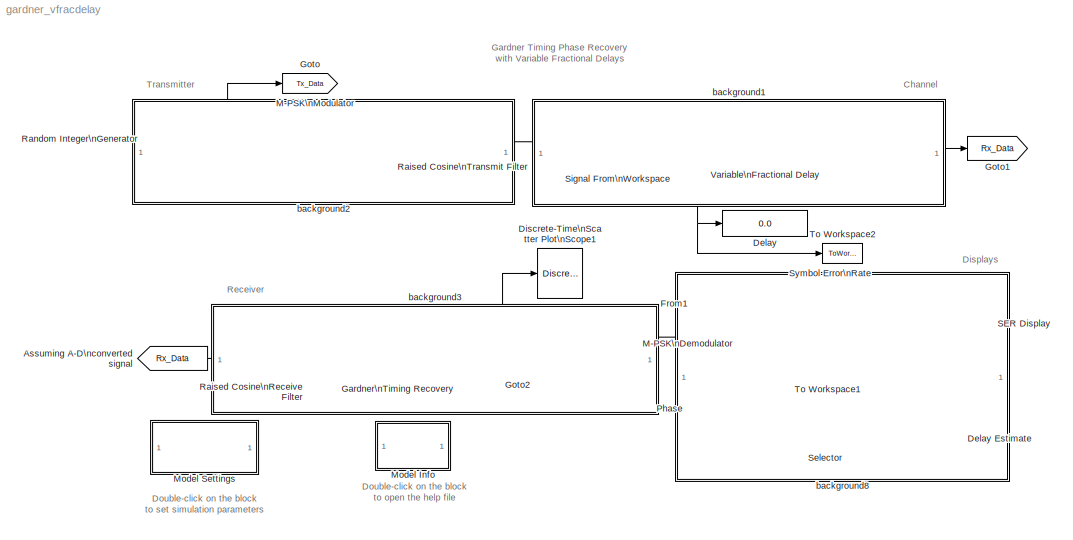
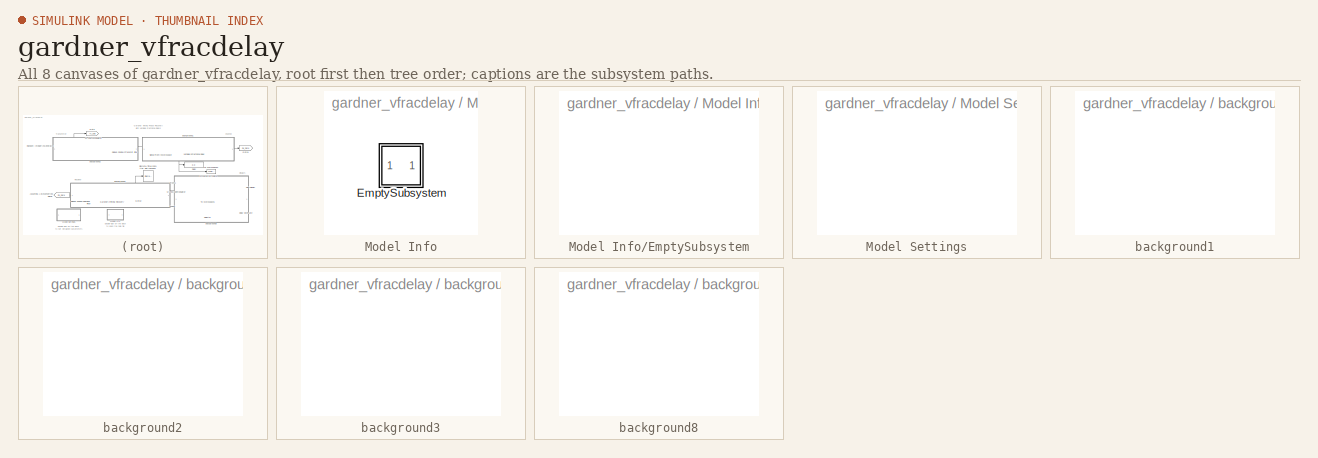
[diagram: thumbnail index - all 8 canvases of the model, root first then tree order]
MODEL gardner_vfracdelay
KIND model
CONFIG PreLoadFcn = L = 16; M = 8; tsym = 0.01; numSymb = 200; snrdB = 40;\nR = 10; rollOff = 0.75; filtDelay = 3; g = 0.07;
CONFIG StartFcn = if (exist('h') & ishandle(h))\n   close(h);\nend
CONFIG StopFcn = a = squeeze(delay).'; b = a(ones(numSymb,1), :); b = b(:);\nh = figure; set(gcf,'position', [452 104 473 342]);\nplot(b, 'b'); hold on; pause(1);plot(tau_fb,'r'); grid on; xlabel('Symbols');\nylabel('in Samples Per Symbol'); title('Delay Estimates');\nlegend('Actual','Estimated');
BLOCK [Reference]    REF=commchan2/AWGN\nChannel
  EbNodB = 10
  EsNodB = snrdB + 10*log10(L)
  Ports = [1, 1]
  Ps = 1
  SNRdB = snrdB
  ShowPortLabels = on
  SourceBlock = commchan2/AWGN\nChannel
  SourceType = AWGN Channel
  Tsym = tsym
  bitsPerSym = 1
  noiseMode = Signal to noise ratio  (SNR)
  seed = 61
  variance = 0.0
BLOCK [From] Assuming A-D\nconverted signal
  CloseFcn = tagdialog Close
  DialogController = Simulink.DDGSource
  GotoTag = Rx_Data
BLOCK [Display] Delay
  Decimation = 1
  Ports = [1]
BLOCK [Display] Delay Estimate
  Decimation = 1
  Ports = [1]
BLOCK [Reference] Discrete-Time\nScatter Plot\nScope1  REF=commsink2/Discrete-Time\nScatter Plot\nScope
  AxisGrid = on
  FigPos = [67 96 375 375]
  FrameNumber = off
  LineColors = b
  LineMarkers = *
  Ports = [1]
  ShowPortLabels = on
  SourceBlock = commsink2/Discrete-Time\nScatter Plot\nScope
  SourceType = Discrete-Time Scatter Plot Scope
  Tag = ScatterPlot
  block_type_ = scatter
  fading = off
  figTitle = Rx Symbols
  inphaseLabel = In-phase Amplitude
  numLinesMax = 8
  numNewFrames = 10
  numTraces = 40
  offsetEye = 0
  openScopeAtSimStart = on
  quadratureLabel = Quadrature Amplitude
  render = off
  sampPerSymb = 1
  xMax = 1.17408434358489
  xMin = -1.19037466930143
  yMax = 1.18757497447174
  yMin = -1.17688403841458
BLOCK [From] From1
  CloseFcn = tagdialog Close
  DialogController = Simulink.DDGSource
  GotoTag = Tx_Data
BLOCK [Reference] Gardner\nTiming Recovery  REF=commtimrec2/Gardner\nTiming Recovery
  Ports = [1, 2]
  SourceBlock = commtimrec2/Gardner\nTiming Recovery
  SourceType = Gardner Timing Recovery
  propGain = g
  resetMode = None
  sampPerSymbol = L
BLOCK [Goto] Goto
  DialogController = Simulink.DDGSource
  GotoTag = Tx_Data
  TagVisibility = local
BLOCK [Goto] Goto1
  DialogController = Simulink.DDGSource
  GotoTag = Rx_Data
  TagVisibility = local
BLOCK [Goto] Goto2
  DialogController = Simulink.DDGSource
  GotoTag = Est_Ph
  TagVisibility = local
BLOCK [Reference] M-PSK\nDemodulator  REF=commdigbbndpm2/M-PSK\nDemodulator\nBaseband
  Dec = Binary
  M = M
  OutType = Integer
  Ph = 0
  Ports = [1, 1]
  SourceBlock = commdigbbndpm2/M-PSK\nDemodulator\nBaseband
  SourceType = M-PSK Demodulator Baseband
  numSamp = 1
BLOCK [Reference] M-PSK\nModulator  REF=commdigbbndpm2/M-PSK\nModulator\nBaseband
  Enc = Binary
  InType = Integer
  M = M
  Ph = 0
  Ports = [1, 1]
  SourceBlock = commdigbbndpm2/M-PSK\nModulator\nBaseband
  SourceType = M-PSK Modulator Baseband
  numSamp = 1
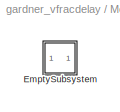
BLOCK [SubSystem] Model Info
  CopyFcn = slcm CopyBlock;
  DeleteFcn = slcm Cancel;
  InitFcn = slcm('UpdateAllCMBlocksInThisModelInit')
  LoadFcn = slcm LoadBlock;
  MaskCallbackString = ||||||||||||||||||||||||||||||
  MaskDescription = This block allows revision control information to be displayed within the model.
  MaskDisplay = text(str2num(LeftAlignmentValue), 0.5, MaskDisplayString, 'HorizontalAlignment', HorizontalTextAlignment)\n
  MaskEnableString = on,on,on,on,on,on,on,on,on,on,on,on,on,on,on,on,on,on,on,on,on,on,on,on,on,on,on,on,on,on,on
  MaskIconFrame = on
  MaskIconOpaque = on
  MaskIconRotate = none
  MaskIconUnits = normalized
  MaskPromptString = InitialSaveTempField|InitialBlockCM|BlockCM|Frame|SaveTempField|DisplayStringWithTags|MaskDisplayString|HorizontalTextAlignment|LeftAlignmentValue|SourceBlockDiagram|TagMaxNumber|CMTag1|CMTag2|CMTag3|CMTag4|CMTag5|CMTag6|CMTag7|CMTag8|CMTag9|CMTag10|CMTag11|CMTag12|CMTag13|CMTag14|CMTag15|CMTag16|CMTag17|CMTag18|CMTag19|CMTag20
  MaskSelfModifiable = on
  MaskStyleString = edit,edit,edit,edit,edit,edit,edit,edit,edit,edit,edit,edit,edit,edit,edit,edit,edit,edit,edit,edit,edit,edit,edit,edit,edit,edit,edit,edit,edit,edit,edit
  MaskTabNameString = ,,,,,,,,,,,,,,,,,,,,,,,,,,,,,,
  MaskToolTipString = on,on,on,on,on,on,on,on,on,on,on,on,on,on,on,on,on,on,on,on,on,on,on,on,on,on,on,on,on,on,on
  MaskTunableValueString = on,on,on,on,on,on,on,on,on,on,on,on,on,on,on,on,on,on,on,on,on,on,on,on,on,on,on,on,on,on,on
  MaskType = CMBlock
  MaskValueString = |None|None|on||Info|Info|Center|0.5|gardner_vfracdelay|20||||||||||||||||||||
  MaskVarAliasString = ,,,,,,,,,,,,,,,,,,,,,,,,,,,,,,
  MaskVariables = InitialSaveTempField=&1;InitialBlockCM=&2;BlockCM=&3;Frame=&4;SaveTempField=&5;DisplayStringWithTags=&6;MaskDisplayString=&7;HorizontalTextAlignment=&8;LeftAlignmentValue=&9;SourceBlockDiagram=&10;TagMaxNumber=@11;CMTag1=&12;CMTag2=&13;CMTag3=&14;CMTag4=&15;CMTag5=&16;CMTag6=&17;CMTag7=&18;CMTag8=&19;CMTag9=&20;CMTag10=&21;CMTag11=&22;CMTag12=&23;CMTag13=&24;CMTag14=&25;CMTag15=&26;CMTag16=&27;CMT...<+45ch>
  MaskVisibilityString = off,off,off,off,off,off,off,off,off,off,off,off,off,off,off,off,off,off,off,off,off,off,off,off,off,off,off,off,off,off,off
  MinAlgLoopOccurrences = off
  NameChangeFcn = slcm Rename;
  OpenFcn = commdemohelp;
  Ports = []
  PostSaveFcn = slcm('UpdateAllCMBlocksInThisModel')
  PropExecContextAcrossSSBoundary = on
  RTWSystemCode = Auto
  TreatAsAtomicUnit = off
BLOCK [SubSystem] Model Info/EmptySubsystem
  MinAlgLoopOccurrences = off
  Ports = []
  PropExecContextAcrossSSBoundary = on
  RTWSystemCode = Auto
  TreatAsAtomicUnit = off
BLOCK [SubSystem] Model Settings
  MaskCallbackString = \n|\n|\n|\n|\n|\n|\n|\n|\n
  MaskDescription = Sets the different parameters for a simulation run.
  MaskDisplay = disp('Initial Model\\nSettings');\n
  MaskEnableString = on,on,on,on,on,on,on,on,on
  MaskIconFrame = on
  MaskIconOpaque = on
  MaskIconRotate = none
  MaskIconUnits = autoscale
  MaskInitialization = gardner_masksetup(gcb);\n
  MaskPromptString = Alphabet size (M):|Symbol period:|Step size (g):|SNR (dB):|Oversampling factor (L):|Rolloff factor:|Group Delay:|Number of symbols per frame:|Number of frames:
  MaskStyleString = edit,edit,edit,edit,edit,edit,edit,edit,edit
  MaskTabNameString = ,,,,,,,,
  MaskToolTipString = on,on,on,on,on,on,on,on,on
  MaskTunableValueString = on,on,on,on,on,on,on,on,on
  MaskType = Initial Model Settings
  MaskValueString = 8|0.01|0.07|30|16|0.75|3|100|25
  MaskVarAliasString = ,,,,,,,,
  MaskVariables = M=@1;tsym=@2;g=@3;snrdB=@4;L=@5;rollOff=@6;filtDelay=@7;numSymb=@8;numRuns=@9;
  MaskVisibilityString = on,on,on,on,on,on,on,on,on
  MinAlgLoopOccurrences = off
  Ports = []
  PropExecContextAcrossSSBoundary = on
  RTWSystemCode = Auto
  TreatAsAtomicUnit = off
BLOCK [From] Phase
  CloseFcn = tagdialog Close
  DialogController = Simulink.DDGSource
  GotoTag = Est_Ph
BLOCK [Reference] Raised Cosine\nReceive Filter  REF=commfilt2/Raised Cosine\nReceive Filter
  D = filtDelay
  N = L
  Ports = [1, 1]
  R = rollOff
  ShowPortLabels = on
  SourceBlock = commfilt2/Raised Cosine\nReceive Filter
  SourceType = Raised Cosine Receive Filter
  checkCoeff = off
  checkGain = Normalized
  downFactor = 1
  downOffset = 0
  filtType = Square root
  filterGain = 1
  launchFVT = off
  rateMode = None
  sampMode = Frame-based
  variableName = rcRxFilt
BLOCK [Reference] Raised Cosine\nTransmit Filter  REF=commfilt2/Raised Cosine\nTransmit Filter
  D = filtDelay
  N = L
  Ports = [1, 1]
  R = rollOff
  ShowPortLabels = on
  SourceBlock = commfilt2/Raised Cosine\nTransmit Filter
  SourceType = Raised Cosine Transmit Filter
  checkCoeff = off
  checkGain = Normalized
  filtType = Square root
  filterGain = 1
  launchFVT = off
  sampMode = Frame-based
  variableName = rcTxFilt
BLOCK [Reference] Random Integer\nGenerator  REF=commrandsrc2/Random Integer\nGenerator
  Ports = [0, 1]
  ShowPortLabels = on
  SourceBlock = commrandsrc2/Random Integer\nGenerator
  SourceType = Random Integer Generator
  Ts = tsym
  frameBased = on
  mul = M
  orient = off
  sampPerFrame = numSymb
  seed = 37
BLOCK [Display] SER Display
  Decimation = 1
  Ports = [1]
BLOCK [Selector] Selector
  Elements = numSymb
  InputPortWidth = numSymb
  Ports = [1, 1]
BLOCK [Reference] Signal From\nWorkspace  REF=dspsrcs4/Signal From\nWorkspace
  OutputAfterFinalValue = Cyclic repetition
  Ports = [0, 1]
  ShowPortLabels = on
  SourceBlock = dspsrcs4/Signal From\nWorkspace
  SourceType = Signal From Workspace
  Ts = tsym*numSymb
  X = randint(R,1,L,918) + rand(R,1)
  nsamps = 1
BLOCK [Reference] Symbol Error\nRate  REF=commsink2/Error Rate\nCalculation
  N = 2*filtDelay+2
  PMode = Port
  Ports = [2, 1]
  RsMode2 = off
  SourceBlock = commsink2/Error Rate\nCalculation
  SourceType = Error Rate Calculation
  WsName = ErrorVec
  cp_mode = Entire frame
  maxBits = inf
  numErr = inf
  st_delay = 0
  stop = off
  subframe = []
BLOCK [ToWorkspace] To Workspace1
  MaxDataPoints = inf
  SampleTime = -1
  SaveFormat = Array
  VariableName = tau_fb
BLOCK [ToWorkspace] To Workspace2
  MaxDataPoints = inf
  SampleTime = -1
  SaveFormat = Array
  VariableName = delay
BLOCK [Reference] Variable\nFractional Delay  REF=dspsigops/Variable\nFractional Delay
  L = 4
  Ports = [2, 1]
  R = 10
  SourceBlock = dspsigops/Variable\nFractional Delay
  SourceType = Variable Fractional Delay
  alpha = 1
  dmax = L
  ic = 0
  mode = Linear Interpolation
BLOCK [SubSystem] background1
  MaskDisplay = disp('')
  MaskIconFrame = on
  MaskIconOpaque = on
  MaskIconRotate = none
  MaskIconUnits = autoscale
  MinAlgLoopOccurrences = off
  Ports = []
  PropExecContextAcrossSSBoundary = on
  RTWSystemCode = Auto
  TreatAsAtomicUnit = off
BLOCK [SubSystem] background2
  MaskDisplay = disp('')
  MaskIconFrame = on
  MaskIconOpaque = on
  MaskIconRotate = none
  MaskIconUnits = autoscale
  MinAlgLoopOccurrences = off
  Ports = []
  PropExecContextAcrossSSBoundary = on
  RTWSystemCode = Auto
  TreatAsAtomicUnit = off
BLOCK [SubSystem] background3
  MaskDisplay = disp('')
  MaskIconFrame = on
  MaskIconOpaque = on
  MaskIconRotate = none
  MaskIconUnits = autoscale
  MinAlgLoopOccurrences = off
  Ports = []
  PropExecContextAcrossSSBoundary = on
  RTWSystemCode = Auto
  TreatAsAtomicUnit = off
BLOCK [SubSystem] background8
  MaskDisplay = disp('')
  MaskIconFrame = on
  MaskIconOpaque = on
  MaskIconRotate = none
  MaskIconUnits = autoscale
  MinAlgLoopOccurrences = off
  Ports = []
  PropExecContextAcrossSSBoundary = on
  RTWSystemCode = Auto
  TreatAsAtomicUnit = off
ANNOTATION (root): Channel
ANNOTATION (root): Displays
ANNOTATION (root): Double-click on the block\nto open the help file
ANNOTATION (root): Double-click on the block\nto set simulation parameters
ANNOTATION (root): Gardner Timing Phase Recovery \nwith Variable Fractional Delays
ANNOTATION (root): Receiver
ANNOTATION (root): Transmitter
LINE  :1 -> Goto1:1
LINE Assuming A-D\nconverted signal:1 -> Raised Cosine\nReceive Filter:1
LINE From1:1 -> Symbol Error\nRate:1
NET Gardner\nTiming Recovery:1 -> Discrete-Time\nScatter Plot\nScope1:1, M-PSK\nDemodulator:1
LINE Gardner\nTiming Recovery:2 -> Goto2:1
LINE M-PSK\nDemodulator:1 -> Symbol Error\nRate:2
LINE M-PSK\nModulator:1 -> Raised Cosine\nTransmit Filter:1
NET Phase:1 -> Selector:1, To Workspace1:1
LINE Raised Cosine\nReceive Filter:1 -> Gardner\nTiming Recovery:1
LINE Raised Cosine\nTransmit Filter:1 -> Variable\nFractional Delay:1
NET Random Integer\nGenerator:1 -> Goto:1, M-PSK\nModulator:1
LINE Selector:1 -> Delay Estimate:1
NET Signal From\nWorkspace:1 -> Delay:1, To Workspace2:1, Variable\nFractional Delay:2
LINE Symbol Error\nRate:1 -> SER Display:1
LINE Variable\nFractional Delay:1 ->  :1
note: NET lines group one-source signal fan-out (src -> all destinations, sorted); 1:1 wires keep LINE
